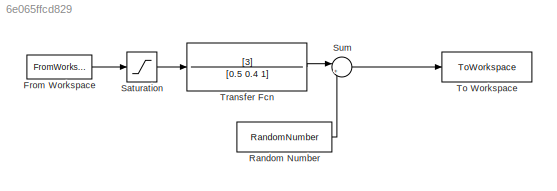
MODEL slx_6e065ffcd829
KIND model
CONFIG AbsTol = auto
CONFIG EnableMultiTasking = off
CONFIG FixedStep = auto
CONFIG MaxStep = auto
CONFIG MinStep = auto
CONFIG RelTol = 1e-3
CONFIG SampleTimeConstraint = Unconstrained
CONFIG SolverName = VariableStepAuto
CONFIG StartTime = 0.0
CONFIG StopTime = 10.0
BLOCK [FromWorkspace] From Workspace
  SampleTime = Ts
  VariableName = simin
BLOCK [RandomNumber] Random Number
  SampleTime = 0.2
  Variance = 0.15
BLOCK [Saturate] Saturation
  LinearizeAsGain = off
  LowerLimit = -0.7
  OutMax = 5
  OutMin = -5
  UpperLimit = 2
BLOCK [Sum] Sum
  Inputs = |++
BLOCK [ToWorkspace] To Workspace
  FixptAsFi = on
  MaxDataPoints = inf
  SampleTime = Ts
  SaveFormat = Structure With Time
  VariableName = simout
BLOCK [TransferFcn] Transfer Fcn
  Denominator = [0.5 0.4 1]
  Numerator = [3]
LINE From Workspace:1 -> Saturation:1
LINE Random Number:1 -> Sum:2
LINE Saturation:1 -> Transfer Fcn:1
LINE Sum:1 -> To Workspace:1
LINE Transfer Fcn:1 -> Sum:1
